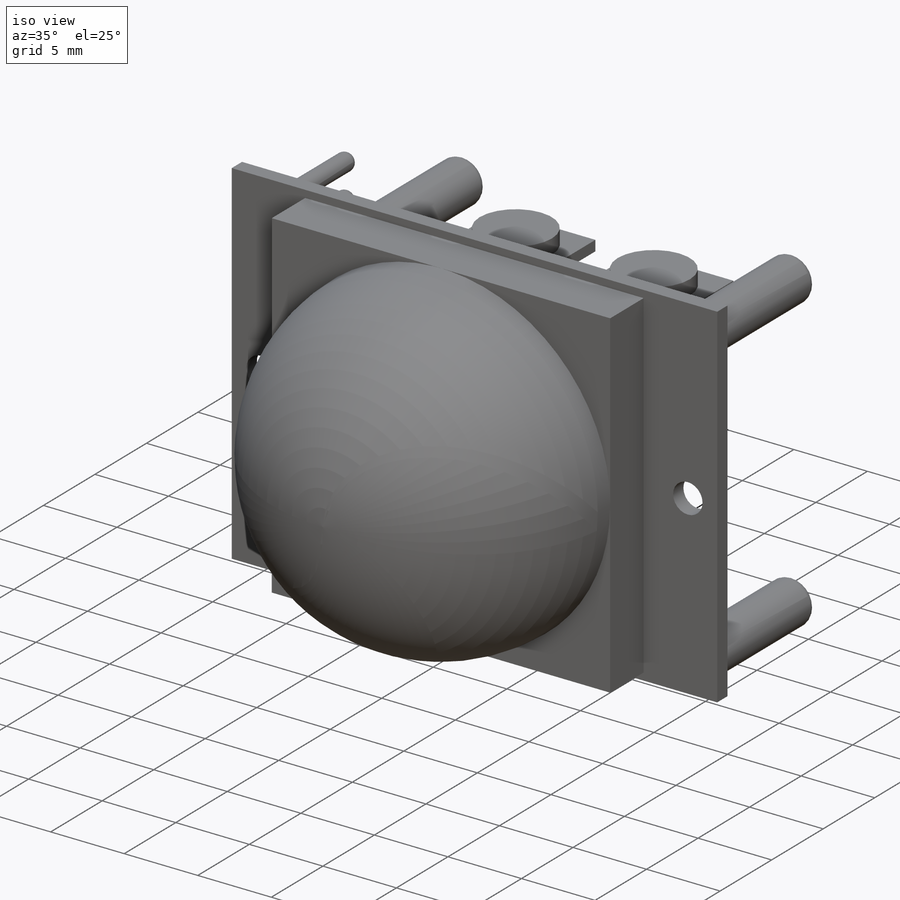
[diagram: iso view]
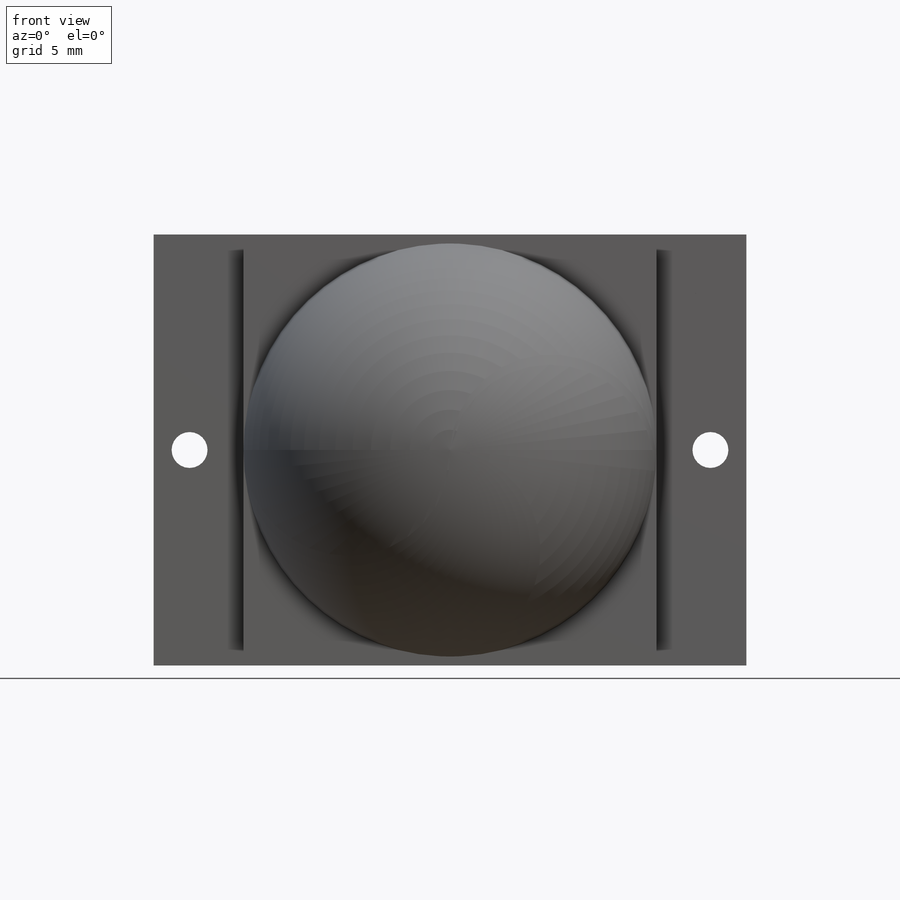
[diagram: front view]
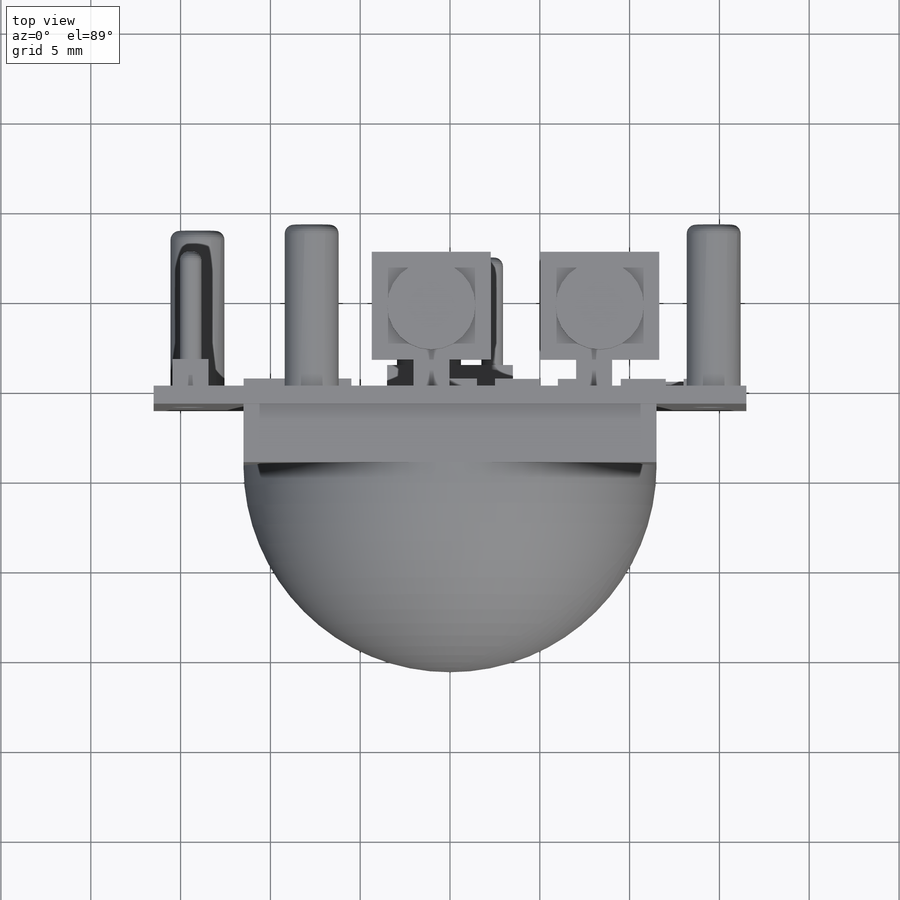
[diagram: top view]
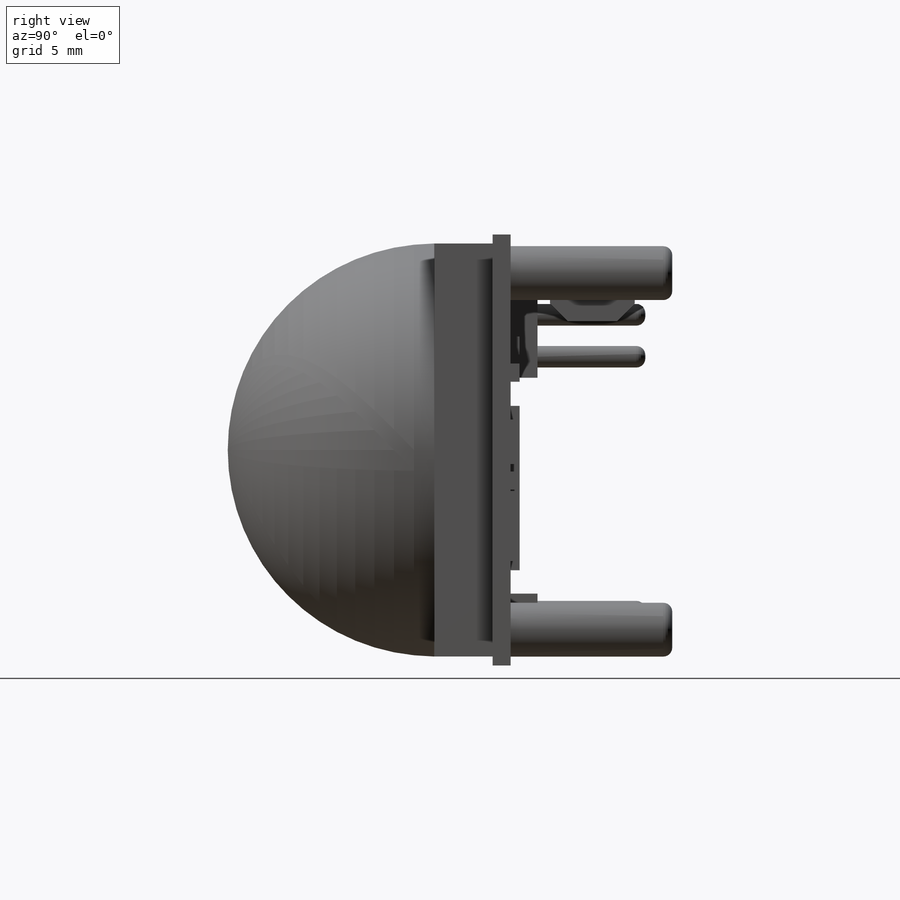
[diagram: right view]
SOLIDWORKS PART (.sldprt)
format: sldprt  version: not decoded by parser v0  size: 731,136 bytes
history: native  units: mm
features: sketch x10, extrude x9, fillet x2, material x1, cut_extrude x1, chamfer x1 (+13 scaffold rows collapsed)
feature tree (37):
  scaffold x13  (default folders/planes/origin — collapsed)
  material  "Material <not specified>"
  sketch  "Sketch1"  dims[D1=24.0mm]
  extrude  "Boss-Extrude1"  Depth=1mm
  sketch  "Sketch2"  dims[D1=23.0mm]
  extrude  "Boss-Extrude2"  Depth=3.25mm
  sketch  "Sketch3"
  extrude  "Boss-Extrude3"  Depth=11.5mm
  fillet  "Fillet1"  Radius=11.5mm
  sketch  "Sketch4"  dims[D1=2.0mm]
  cut_extrude  "Cut-Extrude1"  Depth=11.5mm
  sketch  "Sketch5"  dims[D1=~1.180016mm]
  extrude  "Boss-Extrude4"  Depth=9mm
  sketch  "Sketch6"  dims[D1=2.0mm]
  extrude  "Boss-Extrude5"  Depth=1.5mm
  sketch  "Sketch9"  dims[D1=2.33mm]
  extrude  "Boss-Extrude6"  Depth=6mm
  fillet  "Fillet2"  Radius=0.5mm
  sketch  "Sketch10"
  extrude  "Boss-Extrude7"  Depth=1.5mm
  chamfer  "Chamfer1"  Distance=1mm Angle=45deg
  sketch  "Sketch11"
  extrude  "Boss-Extrude8"  Depth=1mm
  sketch  "Sketch12"  dims[c1.D1=1.0mm c1.D3=2.5mm c2.D1=8.0 c2.D2=2.0 c2.D3=2.0 c2.D4=2.0 c2.D5=6.0]
  extrude  "Boss-Extrude9"  Depth=0.5mm
decode coverage: 20 of 23 modeling features carry decoded parameters
note: ~ marks probable driven/reference dimensions
note: suppression state not decoded; provenance and decode notes live in map.json
